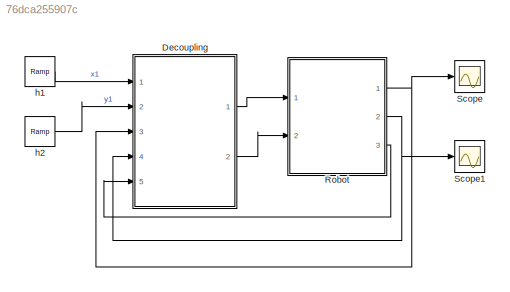
MODEL slx_76dca255907c
KIND model
CONFIG AbsTol = auto
CONFIG EnableMultiTasking = off
CONFIG FixedStep = auto
CONFIG MaxStep = auto
CONFIG MinStep = auto
CONFIG RelTol = 1e-3
CONFIG SampleTimeConstraint = Unconstrained
CONFIG SolverName = VariableStepAuto
CONFIG StartTime = 0.0
CONFIG StopTime = 10.0
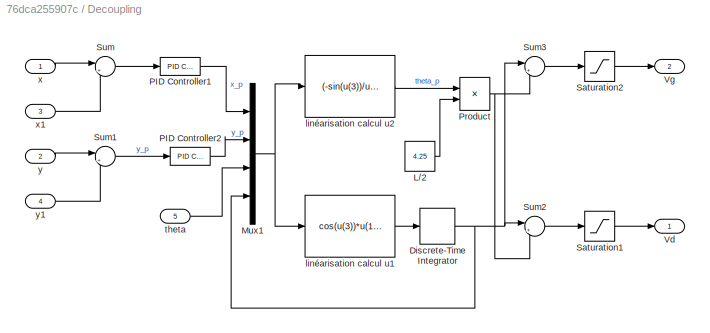
BLOCK [SubSystem] Decoupling
  Ports = [5, 2]
  RequestExecContextInheritance = off
BLOCK [DiscreteIntegrator] Decoupling/Discrete-Time Integrator
  ICPrevOutput = DiscIntNeverNeededParam
  ICPrevScaledInput = DiscIntNeverNeededParam
  InitialCondition = 0.01
  InitialConditionSetting = Auto
  Ports = [1, 1]
  SampleTime = Ts
BLOCK [Constant] Decoupling/L//2
  Value = 4.25
BLOCK [Mux] Decoupling/Mux1
  DisplayOption = bar
  Ports = [4, 1]
BLOCK [Reference] Decoupling/PID Controller1  REF=slpidlib/PID Controller
  Ports = [1, 1]
  SourceBlock = slpidlib/PID Controller
  SourceProductBaseCode = SL
  SourceType = PID 1dof
BLOCK [Reference] Decoupling/PID Controller2  REF=slpidlib/PID Controller
  Ports = [1, 1]
  SourceBlock = slpidlib/PID Controller
  SourceProductBaseCode = SL
  SourceType = PID 1dof
BLOCK [Product] Decoupling/Product
  Ports = [2, 1]
BLOCK [Saturate] Decoupling/Saturation1
  LowerLimit = -40
  UpperLimit = 40
BLOCK [Saturate] Decoupling/Saturation2
  LowerLimit = -40
  UpperLimit = 40
BLOCK [Sum] Decoupling/Sum
  Inputs = |+-
  Ports = [2, 1]
BLOCK [Sum] Decoupling/Sum1
  Inputs = |+-
  Ports = [2, 1]
BLOCK [Sum] Decoupling/Sum2
  Inputs = |++
  Ports = [2, 1]
BLOCK [Sum] Decoupling/Sum3
  Inputs = |+-
  Ports = [2, 1]
BLOCK [Outport] Decoupling/Vd
BLOCK [Outport] Decoupling/Vg
  Port = 2
BLOCK [Fcn] Decoupling/linéarisation calcul u1
  Expr = cos(u(3))*u(1)+sin(u(3))*u(2)
BLOCK [Fcn] Decoupling/linéarisation calcul u2
  Expr = (-sin(u(3))/u(4))*u(1)+(cos(u(3))/u(4))*u(2)
BLOCK [Inport] Decoupling/theta 
  Port = 5
BLOCK [Inport] Decoupling/x
BLOCK [Inport] Decoupling/x1
  Port = 3
BLOCK [Inport] Decoupling/y
  Port = 2
BLOCK [Inport] Decoupling/y1
  Port = 4
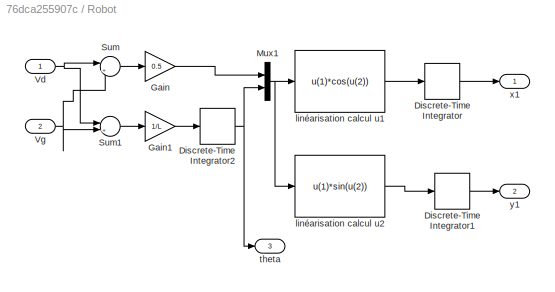
BLOCK [SubSystem] Robot
  Ports = [2, 3]
  RequestExecContextInheritance = off
BLOCK [Outport] Robot/ theta
  Port = 3
BLOCK [Outport] Robot/ y1
  Port = 2
BLOCK [DiscreteIntegrator] Robot/Discrete-Time Integrator
  ICPrevOutput = DiscIntNeverNeededParam
  ICPrevScaledInput = DiscIntNeverNeededParam
  InitialConditionSetting = Auto
  Ports = [1, 1]
  SampleTime = Ts
BLOCK [DiscreteIntegrator] Robot/Discrete-Time Integrator1
  ICPrevOutput = DiscIntNeverNeededParam
  ICPrevScaledInput = DiscIntNeverNeededParam
  InitialConditionSetting = Auto
  Ports = [1, 1]
  SampleTime = Ts
BLOCK [DiscreteIntegrator] Robot/Discrete-Time Integrator2
  ICPrevOutput = DiscIntNeverNeededParam
  ICPrevScaledInput = DiscIntNeverNeededParam
  InitialConditionSetting = Auto
  Ports = [1, 1]
  SampleTime = Ts
BLOCK [Gain] Robot/Gain
  Gain = 0.5
BLOCK [Gain] Robot/Gain1
  Gain = 1/L
BLOCK [Mux] Robot/Mux1
  DisplayOption = bar
  Inputs = 2
  Ports = [2, 1]
BLOCK [Sum] Robot/Sum
  Inputs = |++
  Ports = [2, 1]
BLOCK [Sum] Robot/Sum1
  Inputs = |+-
  Ports = [2, 1]
BLOCK [Inport] Robot/Vd
BLOCK [Inport] Robot/Vg
  Port = 2
BLOCK [Fcn] Robot/linéarisation calcul u1
  Expr = u(1)*cos(u(2))
BLOCK [Fcn] Robot/linéarisation calcul u2
  Expr = u(1)*sin(u(2))
BLOCK [Outport] Robot/x1
BLOCK [Scope] Scope
  Floating = off
  NumInputPorts = 1
  Ports = [1]
  ScopeSpecificationString = Simulink.scopes.TimeScopeBlockCfg('CurrentConfiguration', extmgr.ConfigurationSet(extmgr.Configuration('Core','General UI',true),extmgr.Configuration('Core','Source UI',true),extmgr.Configuration('Sources','WiredSimulink',true),extmgr.Configuration('Visuals','Time Domain',true,'SerializedDisplays',{struct('MinYLimReal','-1.10034','MaxYLimReal','9.90306','YLabelReal','','MinYLimMag','0.00000','MaxY...<+1382ch>
BLOCK [Scope] Scope1
  Floating = off
  NumInputPorts = 1
  Ports = [1]
  ScopeSpecificationString = Simulink.scopes.TimeScopeBlockCfg('CurrentConfiguration', extmgr.ConfigurationSet(extmgr.Configuration('Core','General UI',true),extmgr.Configuration('Core','Source UI',true),extmgr.Configuration('Sources','WiredSimulink',true,'DataLoggingVariableName','ScopeData1'),extmgr.Configuration('Visuals','Time Domain',true,'SerializedDisplays',{struct('MinYLimReal','-0.84668','MaxYLimReal','7.62016','YLab...<+1390ch>
BLOCK [Reference] h1  REF=simulink/Sources/Ramp
  Ports = [0, 1]
  SourceBlock = simulink/Sources/Ramp
  SourceProductBaseCode = SL
  SourceType = Ramp
BLOCK [Reference] h2  REF=simulink/Sources/Ramp
  Ports = [0, 1]
  SourceBlock = simulink/Sources/Ramp
  SourceProductBaseCode = SL
  SourceType = Ramp
NET Decoupling/Discrete-Time Integrator:1 -> Decoupling/Mux1:4, Decoupling/Sum2:1, Decoupling/Sum3:1
LINE Decoupling/L//2:1 -> Decoupling/Product:2
NET Decoupling/Mux1:1 -> Decoupling/linéarisation calcul u1:1, Decoupling/linéarisation calcul u2:1
LINE Decoupling/PID Controller1:1 -> Decoupling/Mux1:1
LINE Decoupling/PID Controller2:1 -> Decoupling/Mux1:2
NET Decoupling/Product:1 -> Decoupling/Sum2:2, Decoupling/Sum3:2
LINE Decoupling/Saturation1:1 -> Decoupling/Vd:1
LINE Decoupling/Saturation2:1 -> Decoupling/Vg:1
LINE Decoupling/Sum1:1 -> Decoupling/PID Controller2:1
LINE Decoupling/Sum2:1 -> Decoupling/Saturation1:1
LINE Decoupling/Sum3:1 -> Decoupling/Saturation2:1
LINE Decoupling/Sum:1 -> Decoupling/PID Controller1:1
LINE Decoupling/linéarisation calcul u1:1 -> Decoupling/Discrete-Time Integrator:1
LINE Decoupling/linéarisation calcul u2:1 -> Decoupling/Product:1
LINE Decoupling/theta :1 -> Decoupling/Mux1:3
LINE Decoupling/x1:1 -> Decoupling/Sum:2
LINE Decoupling/x:1 -> Decoupling/Sum:1
LINE Decoupling/y1:1 -> Decoupling/Sum1:2
LINE Decoupling/y:1 -> Decoupling/Sum1:1
LINE Decoupling:1 -> Robot:1
LINE Decoupling:2 -> Robot:2
LINE Robot/Discrete-Time Integrator1:1 -> Robot/ y1:1
NET Robot/Discrete-Time Integrator2:1 -> Robot/ theta:1, Robot/Mux1:2
LINE Robot/Discrete-Time Integrator:1 -> Robot/x1:1
LINE Robot/Gain1:1 -> Robot/Discrete-Time Integrator2:1
LINE Robot/Gain:1 -> Robot/Mux1:1
NET Robot/Mux1:1 -> Robot/linéarisation calcul u1:1, Robot/linéarisation calcul u2:1
LINE Robot/Sum1:1 -> Robot/Gain1:1
LINE Robot/Sum:1 -> Robot/Gain:1
NET Robot/Vd:1 -> Robot/Sum1:1, Robot/Sum:1
NET Robot/Vg:1 -> Robot/Sum1:2, Robot/Sum:2
LINE Robot/linéarisation calcul u1:1 -> Robot/Discrete-Time Integrator:1
LINE Robot/linéarisation calcul u2:1 -> Robot/Discrete-Time Integrator1:1
NET Robot:1 -> Decoupling:3, Scope:1
NET Robot:2 -> Decoupling:4, Scope1:1
LINE Robot:3 -> Decoupling:5
LINE h1:1 -> Decoupling:1
LINE h2:1 -> Decoupling:2
note: NET lines group one-source signal fan-out (src -> all destinations, sorted); 1:1 wires keep LINE
